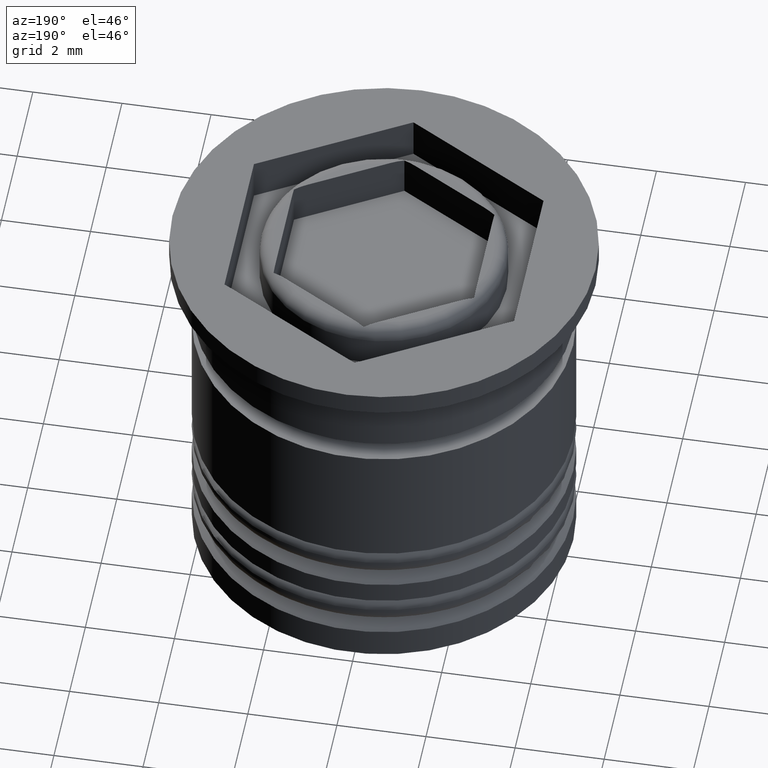
[diagram: clean part render]
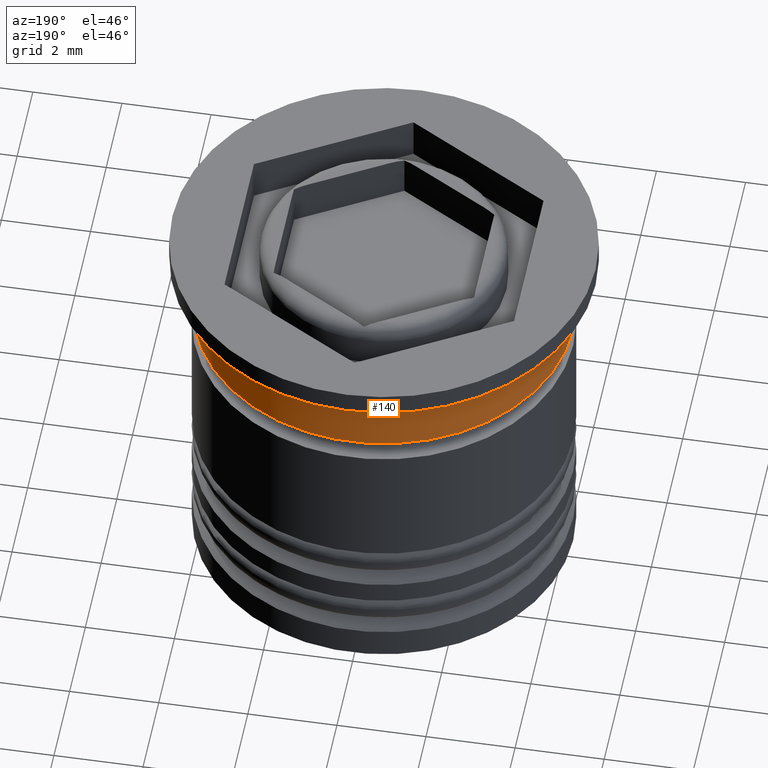
[diagram: same view with one face highlighted and labeled with its STEP entity id]
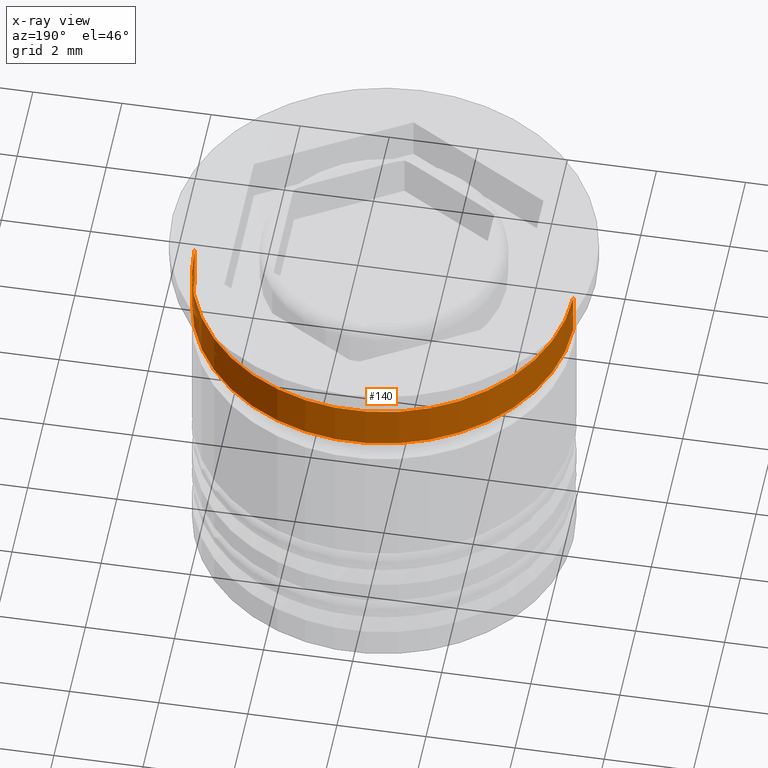
[diagram: x-ray of the same camera — body ghosted, the highlighted face saturated]
A machine part, auxiliary view. The second image highlights one B-rep face of the part: STEP entity #140.
The next image is the same camera in x-ray: the body ghosted, the highlighted face saturated — about 2% of this face is hidden behind the body in this view.
In plain terms, the highlighted cylindrical surface (partial cylindrical patch) has radius 4.25 mm, axis along (-0, -0, 1).
Its self-contained STEP definition (entity closure, byte-faithful):
#104 = CARTESIAN_POINT ( 'NONE',  ( 0.000000000000000000, 0.000000000000000000, -2.000000000000000888 ) ) ;
#108 = DIRECTION ( 'NONE',  ( -0.000000000000000000, -0.000000000000000000, 1.000000000000000000 ) ) ;
#140 = ADVANCED_FACE ( 'NONE', ( #1133 ), #1784, .T. ) ;
#151 = VECTOR ( 'NONE', #679, 1000.000000000000000 ) ;
#265 = CARTESIAN_POINT ( 'NONE',  ( -4.249999999999999112, 5.204748896376249713E-16, -0.9999999999999997780 ) ) ;
#282 = AXIS2_PLACEMENT_3D ( 'NONE', #104, #741, #576 ) ;
#307 = DIRECTION ( 'NONE',  ( -0.000000000000000000, -0.000000000000000000, 1.000000000000000000 ) ) ;
#371 = VERTEX_POINT ( 'NONE', #935 ) ;
#442 = CARTESIAN_POINT ( 'NONE',  ( -4.250000000000000000, 5.204748896376250699E-16, 0.000000000000000000 ) ) ;
#517 = EDGE_CURVE ( 'NONE', #1098, #561, #1459, .T. ) ;
#561 = VERTEX_POINT ( 'NONE', #1587 ) ;
#576 = DIRECTION ( 'NONE',  ( 1.000000000000000000, 0.000000000000000000, 0.000000000000000000 ) ) ;
#679 = DIRECTION ( 'NONE',  ( -0.000000000000000000, -0.000000000000000000, 1.000000000000000000 ) ) ;
#741 = DIRECTION ( 'NONE',  ( -0.000000000000000000, -0.000000000000000000, 1.000000000000000000 ) ) ;
#751 = CIRCLE ( 'NONE', #282, 4.250000000000000000 ) ;
#752 = EDGE_CURVE ( 'NONE', #1098, #371, #751, .T. ) ;
#766 = ORIENTED_EDGE ( 'NONE', *, *, #830, .T. ) ;
#816 = CARTESIAN_POINT ( 'NONE',  ( 4.250000000000000000, 0.000000000000000000, 0.000000000000000000 ) ) ;
#830 = EDGE_CURVE ( 'NONE', #371, #1788, #1543, .T. ) ;
#841 = DIRECTION ( 'NONE',  ( -0.000000000000000000, -0.000000000000000000, 1.000000000000000000 ) ) ;
#921 = ORIENTED_EDGE ( 'NONE', *, *, #752, .T. ) ;
#935 = CARTESIAN_POINT ( 'NONE',  ( -4.250000000000000000, 5.204748896376250699E-16, -2.000000000000000888 ) ) ;
#1024 = CARTESIAN_POINT ( 'NONE',  ( 4.250000000000000000, 0.000000000000000000, -2.000000000000000888 ) ) ;
#1075 = VECTOR ( 'NONE', #307, 1000.000000000000000 ) ;
#1098 = VERTEX_POINT ( 'NONE', #1024 ) ;
#1117 = EDGE_LOOP ( 'NONE', ( #921, #766, #1593, #1823 ) ) ;
#1133 = FACE_OUTER_BOUND ( 'NONE', #1117, .T. ) ;
#1385 = DIRECTION ( 'NONE',  ( 1.000000000000000000, 0.000000000000000000, 0.000000000000000000 ) ) ;
#1429 = AXIS2_PLACEMENT_3D ( 'NONE', #1921, #841, #1624 ) ;
#1459 = LINE ( 'NONE', #816, #151 ) ;
#1543 = LINE ( 'NONE', #442, #1075 ) ;
#1587 = CARTESIAN_POINT ( 'NONE',  ( 4.249999999999999112, 0.000000000000000000, -0.9999999999999997780 ) ) ;
#1593 = ORIENTED_EDGE ( 'NONE', *, *, #1849, .F. ) ;
#1624 = DIRECTION ( 'NONE',  ( 1.000000000000000000, 0.000000000000000000, 0.000000000000000000 ) ) ;
#1741 = AXIS2_PLACEMENT_3D ( 'NONE', #1840, #108, #1385 ) ;
#1784 = CYLINDRICAL_SURFACE ( 'NONE', #1429, 4.250000000000000000 ) ;
#1788 = VERTEX_POINT ( 'NONE', #265 ) ;
#1823 = ORIENTED_EDGE ( 'NONE', *, *, #517, .F. ) ;
#1840 = CARTESIAN_POINT ( 'NONE',  ( 0.000000000000000000, 0.000000000000000000, -0.9999999999999997780 ) ) ;
#1849 = EDGE_CURVE ( 'NONE', #561, #1788, #1933, .T. ) ;
#1921 = CARTESIAN_POINT ( 'NONE',  ( 0.000000000000000000, 0.000000000000000000, 0.000000000000000000 ) ) ;
#1933 = CIRCLE ( 'NONE', #1741, 4.249999999999999112 ) ;